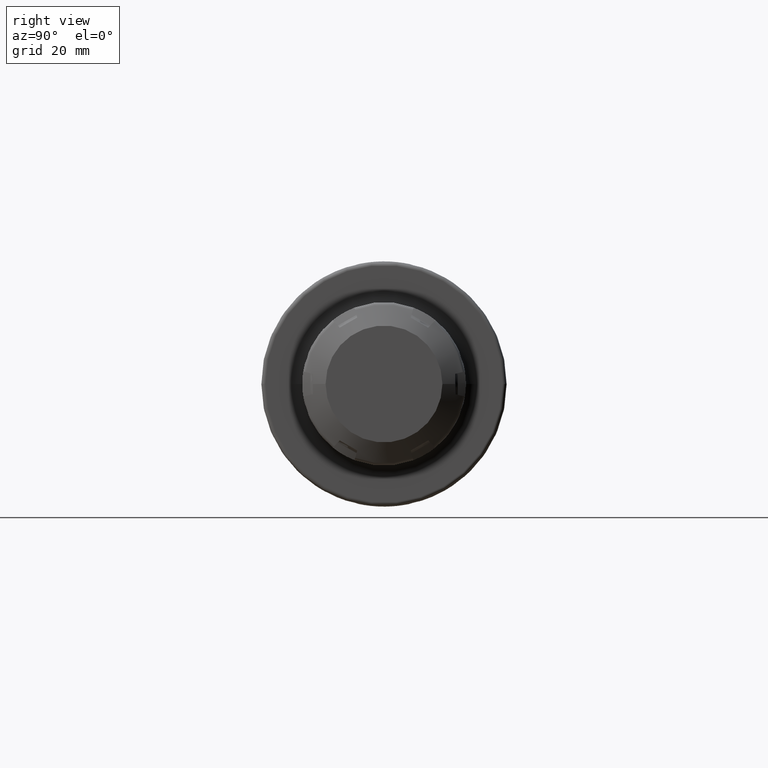
[diagram: clean part render]
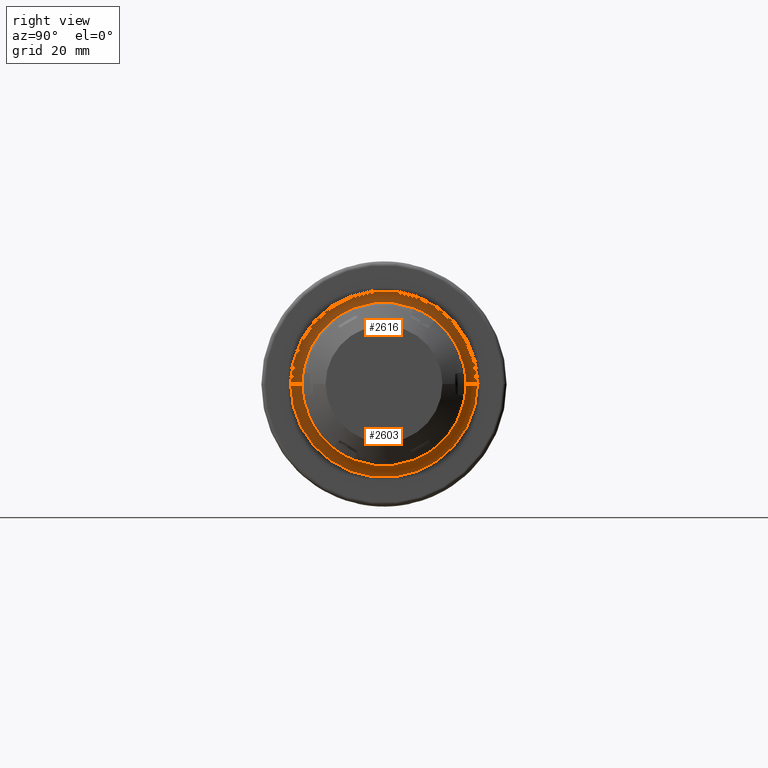
[diagram: same view with one multi-face feature highlighted, each face labeled with its STEP entity id]
A machine part, right view. The highlighted faces form ONE feature: a constant-radius fillet chain: 2 tangent blend faces with common blend radius 3 mm. The faces share edges in the B-rep.
Their STEP definitions:
[1] entity #2603 (Torus):
#836=CARTESIAN_POINT('',(2.7E1,0.E0,0.E0));
#837=DIRECTION('',(1.E0,0.E0,0.E0));
#838=DIRECTION('',(0.E0,-1.E0,0.E0));
#839=AXIS2_PLACEMENT_3D('',#836,#837,#838);
#846=CARTESIAN_POINT('',(3.E1,-2.4E1,2.739752869019E-13));
#847=DIRECTION('',(0.E0,-1.141448047193E-14,-1.E0));
#848=DIRECTION('',(-1.E0,2.013204417987E-14,0.E0));
#849=AXIS2_PLACEMENT_3D('',#846,#847,#848);
#851=CARTESIAN_POINT('',(3.E1,2.4E1,-2.769173779171E-13));
#852=DIRECTION('',(0.E0,1.153764583872E-14,1.E0));
#853=DIRECTION('',(-1.E0,-2.013204417987E-14,0.E0));
#854=AXIS2_PLACEMENT_3D('',#851,#852,#853);
#885=CARTESIAN_POINT('',(3.E1,0.E0,0.E0));
#886=DIRECTION('',(1.E0,0.E0,0.E0));
#887=DIRECTION('',(0.E0,-1.E0,0.E0));
#888=AXIS2_PLACEMENT_3D('',#885,#886,#887);
#1465=CARTESIAN_POINT('',(2.7E1,-2.4E1,0.E0));
#1466=CARTESIAN_POINT('',(2.7E1,2.4E1,0.E0));
#1467=VERTEX_POINT('',#1465);
#1468=VERTEX_POINT('',#1466);
#1469=CARTESIAN_POINT('',(3.E1,-2.1E1,0.E0));
#1470=CARTESIAN_POINT('',(3.E1,2.1E1,0.E0));
#1471=VERTEX_POINT('',#1469);
#1472=VERTEX_POINT('',#1470);
#2589=CARTESIAN_POINT('',(3.E1,0.E0,0.E0));
#2590=DIRECTION('',(1.E0,0.E0,0.E0));
#2591=DIRECTION('',(0.E0,-9.999731921857E-1,7.322220282676E-3));
#2592=AXIS2_PLACEMENT_3D('',#2589,#2590,#2591);
#2593=TOROIDAL_SURFACE('',#2592,2.4E1,3.E0);
#2594=ORIENTED_EDGE('',*,*,#2582,.F.);
#2596=ORIENTED_EDGE('',*,*,#2595,.T.);
#2598=ORIENTED_EDGE('',*,*,#2597,.T.);
#2600=ORIENTED_EDGE('',*,*,#2599,.F.);
#2601=EDGE_LOOP('',(#2594,#2596,#2598,#2600));
#2602=FACE_OUTER_BOUND('',#2601,.F.);
#2603=ADVANCED_FACE('',(#2602),#2593,.F.);
#840=CIRCLE('',#839,2.4E1);
#850=CIRCLE('',#849,3.E0);
#855=CIRCLE('',#854,3.E0);
#889=CIRCLE('',#888,2.1E1);
#2582=EDGE_CURVE('',#1467,#1468,#840,.T.);
#2595=EDGE_CURVE('',#1467,#1471,#850,.T.);
#2597=EDGE_CURVE('',#1471,#1472,#889,.T.);
#2599=EDGE_CURVE('',#1468,#1472,#855,.T.);
[2] entity #2616 (Torus):
#841=CARTESIAN_POINT('',(2.7E1,0.E0,0.E0));
#842=DIRECTION('',(1.E0,0.E0,0.E0));
#843=DIRECTION('',(0.E0,1.E0,0.E0));
#844=AXIS2_PLACEMENT_3D('',#841,#842,#843);
#846=CARTESIAN_POINT('',(3.E1,-2.4E1,2.739752869019E-13));
#847=DIRECTION('',(0.E0,-1.141448047193E-14,-1.E0));
#848=DIRECTION('',(-1.E0,2.013204417987E-14,0.E0));
#849=AXIS2_PLACEMENT_3D('',#846,#847,#848);
#851=CARTESIAN_POINT('',(3.E1,2.4E1,-2.769173779171E-13));
#852=DIRECTION('',(0.E0,1.153764583872E-14,1.E0));
#853=DIRECTION('',(-1.E0,-2.013204417987E-14,0.E0));
#854=AXIS2_PLACEMENT_3D('',#851,#852,#853);
#861=CARTESIAN_POINT('',(3.E1,0.E0,0.E0));
#862=DIRECTION('',(1.E0,0.E0,0.E0));
#863=DIRECTION('',(0.E0,1.E0,0.E0));
#864=AXIS2_PLACEMENT_3D('',#861,#862,#863);
#1465=CARTESIAN_POINT('',(2.7E1,-2.4E1,0.E0));
#1466=CARTESIAN_POINT('',(2.7E1,2.4E1,0.E0));
#1467=VERTEX_POINT('',#1465);
#1468=VERTEX_POINT('',#1466);
#1469=CARTESIAN_POINT('',(3.E1,-2.1E1,0.E0));
#1470=CARTESIAN_POINT('',(3.E1,2.1E1,0.E0));
#1471=VERTEX_POINT('',#1469);
#1472=VERTEX_POINT('',#1470);
#2604=CARTESIAN_POINT('',(3.E1,0.E0,0.E0));
#2605=DIRECTION('',(1.E0,0.E0,0.E0));
#2606=DIRECTION('',(0.E0,9.999731921857E-1,-7.322220282677E-3));
#2607=AXIS2_PLACEMENT_3D('',#2604,#2605,#2606);
#2608=TOROIDAL_SURFACE('',#2607,2.4E1,3.E0);
#2609=ORIENTED_EDGE('',*,*,#2584,.F.);
#2610=ORIENTED_EDGE('',*,*,#2599,.T.);
#2612=ORIENTED_EDGE('',*,*,#2611,.T.);
#2613=ORIENTED_EDGE('',*,*,#2595,.F.);
#2614=EDGE_LOOP('',(#2609,#2610,#2612,#2613));
#2615=FACE_OUTER_BOUND('',#2614,.F.);
#2616=ADVANCED_FACE('',(#2615),#2608,.F.);
#845=CIRCLE('',#844,2.4E1);
#850=CIRCLE('',#849,3.E0);
#855=CIRCLE('',#854,3.E0);
#865=CIRCLE('',#864,2.1E1);
#2584=EDGE_CURVE('',#1468,#1467,#845,.T.);
#2595=EDGE_CURVE('',#1467,#1471,#850,.T.);
#2599=EDGE_CURVE('',#1468,#1472,#855,.T.);
#2611=EDGE_CURVE('',#1472,#1471,#865,.T.);